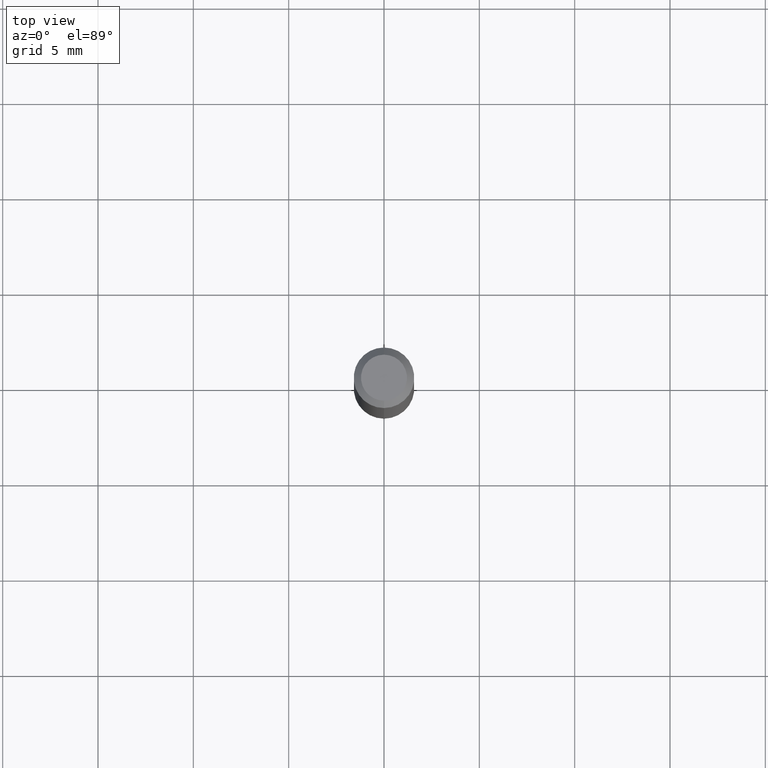
[diagram: clean part render]
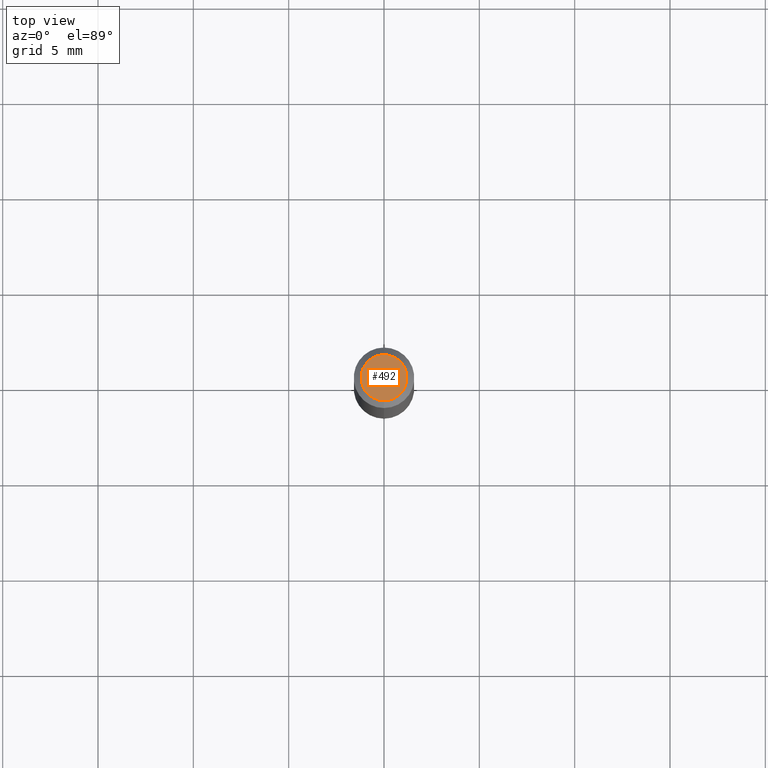
[diagram: same view with one face highlighted and labeled with its STEP entity id]
A machine part, top view. The second image highlights one B-rep face of the part: STEP entity #492.
In plain terms, the highlighted planar face has unit normal (0, -0, -1).
Its self-contained STEP definition (entity closure, byte-faithful):
#22 = CARTESIAN_POINT ( 'NONE',  ( -3.773273898774340269E-16, -0.04749999999999999362, 1.569854397394025813E-16 ) ) ;
#26 = ORIENTED_EDGE ( 'NONE', *, *, #285, .T. ) ;
#28 = ORIENTED_EDGE ( 'NONE', *, *, #458, .T. ) ;
#64 = AXIS2_PLACEMENT_3D ( 'NONE', #89, #339, #188 ) ;
#89 = CARTESIAN_POINT ( 'NONE',  ( 3.316907271900976096E-16, 0.04749999999999999362, -1.702756223250110305E-16 ) ) ;
#91 = CARTESIAN_POINT ( 'NONE',  ( 2.166712552160914640E-46, -3.093498656642664757E-32, -8.860121723738961558E-18 ) ) ;
#126 = FACE_OUTER_BOUND ( 'NONE', #425, .T. ) ;
#130 = AXIS2_PLACEMENT_3D ( 'NONE', #365, #512, #471 ) ;
#147 = VERTEX_POINT ( 'NONE', #22 ) ;
#164 = CARTESIAN_POINT ( 'NONE',  ( 3.840629472727447874E-16, 0.04749999999999999362, -1.747056831868805136E-16 ) ) ;
#188 = DIRECTION ( 'NONE',  ( 6.982962677686265922E-15, 1.000000000000000000, -3.491485504487190992E-15 ) ) ;
#208 = CIRCLE ( 'NONE', #216, 0.04749999999999999362 ) ;
#216 = AXIS2_PLACEMENT_3D ( 'NONE', #91, #247, #393 ) ;
#247 = DIRECTION ( 'NONE',  ( -2.445465897331447067E-29, 3.491485504487190597E-15, 1.000000000000000000 ) ) ;
#285 = EDGE_CURVE ( 'NONE', #147, #407, #208, .T. ) ;
#339 = DIRECTION ( 'NONE',  ( 2.445465897331446507E-29, -3.491485504487190992E-15, -1.000000000000000000 ) ) ;
#365 = CARTESIAN_POINT ( 'NONE',  ( 2.166712552160914640E-46, -3.093498656642664757E-32, -8.860121723738961558E-18 ) ) ;
#393 = DIRECTION ( 'NONE',  ( -6.982962677686266711E-15, -1.000000000000000000, 3.491485504487190992E-15 ) ) ;
#400 = CIRCLE ( 'NONE', #130, 0.04749999999999999362 ) ;
#407 = VERTEX_POINT ( 'NONE', #164 ) ;
#425 = EDGE_LOOP ( 'NONE', ( #28, #26 ) ) ;
#435 = PLANE ( 'NONE',  #64 ) ;
#458 = EDGE_CURVE ( 'NONE', #407, #147, #400, .T. ) ;
#471 = DIRECTION ( 'NONE',  ( -6.982962677686266711E-15, -1.000000000000000000, 3.491485504487190992E-15 ) ) ;
#492 = ADVANCED_FACE ( 'NONE', ( #126 ), #435, .F. ) ;
#512 = DIRECTION ( 'NONE',  ( -2.445465897331447067E-29, 3.491485504487190597E-15, 1.000000000000000000 ) ) ;